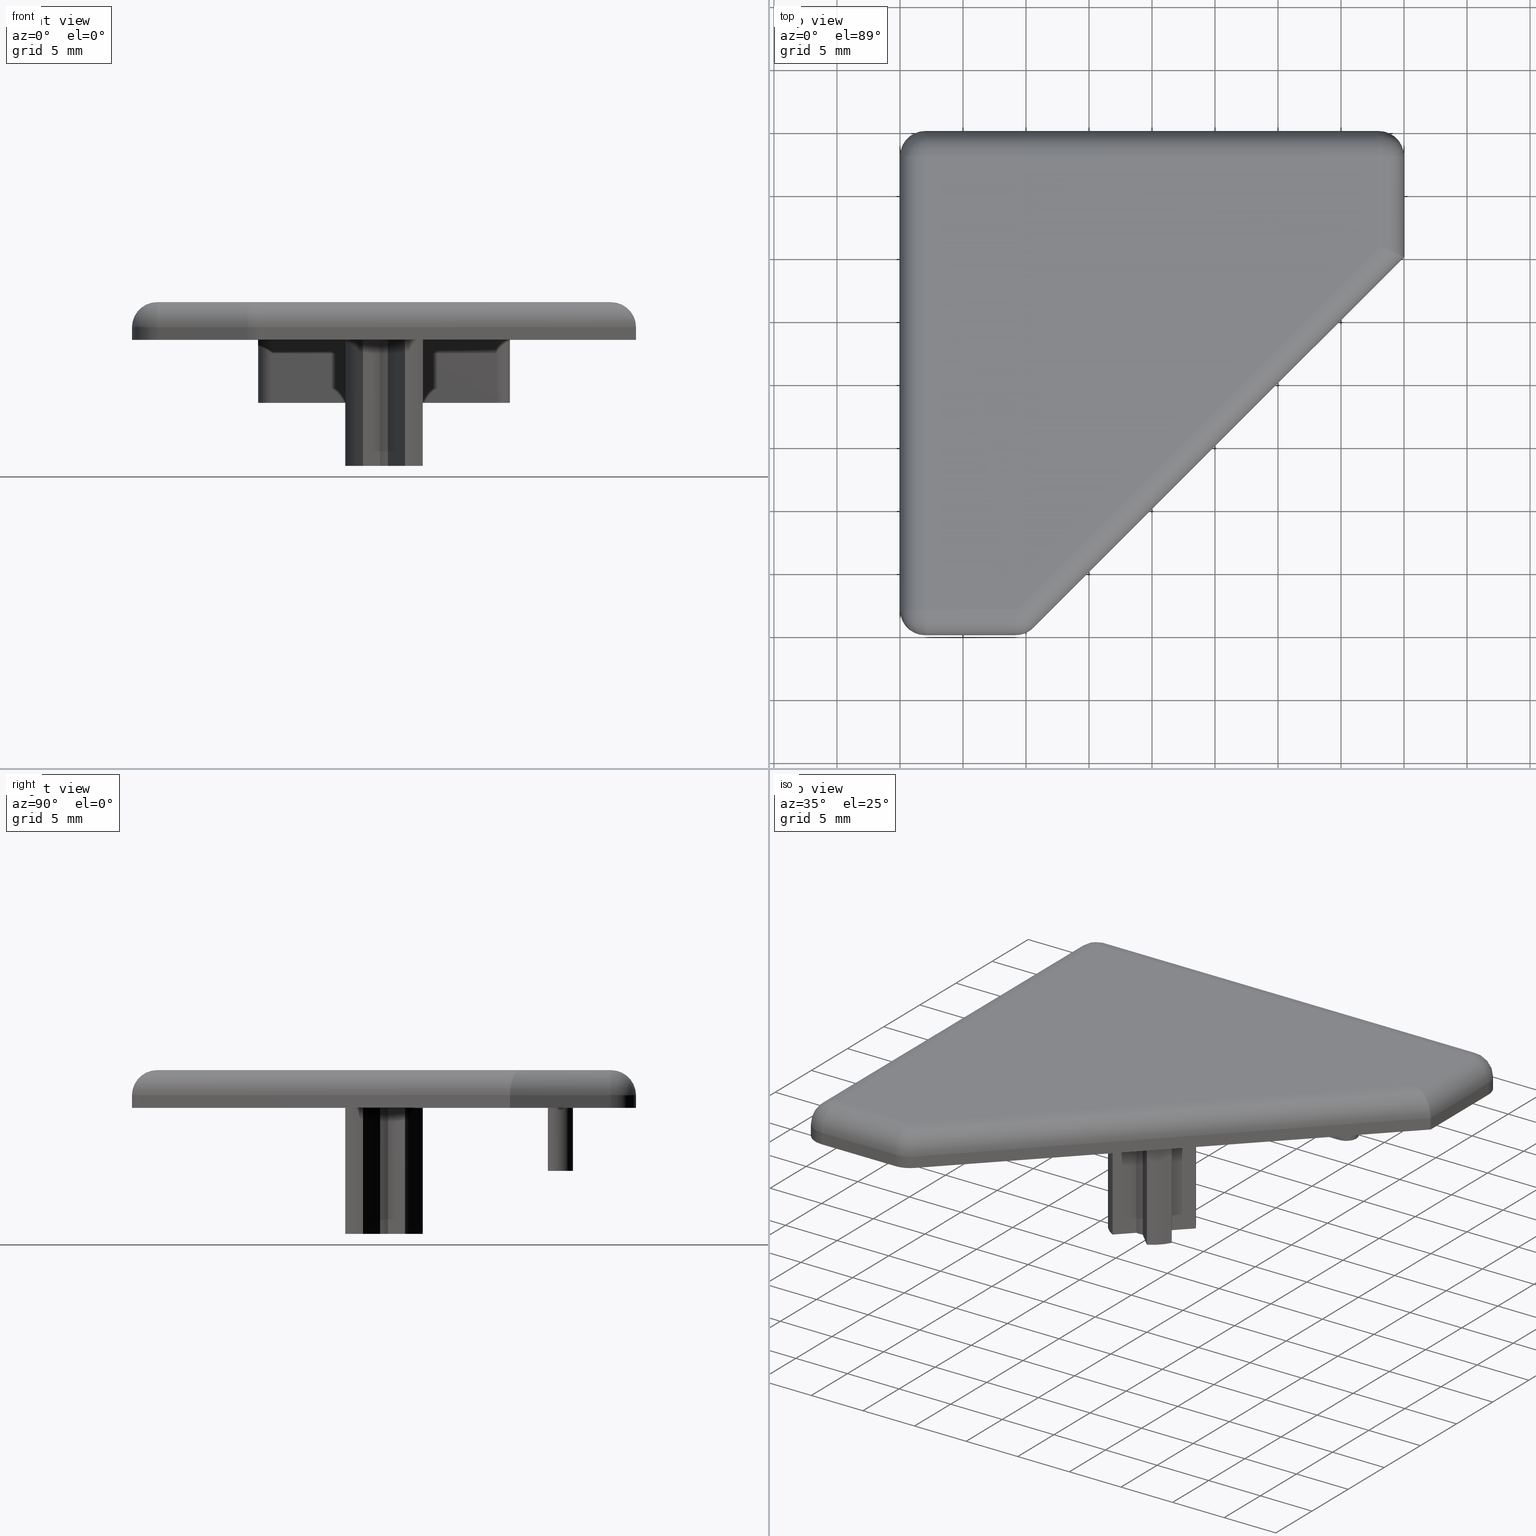
[diagram: canonical four-view strip — front | top / right | iso, engineering-drawing reading convention]
A machine part, canonical four-view strip (front | top / right | iso — engineering-drawing reading convention). The complete STEP part file that produces these views, byte-faithful:
ISO-10303-21;
HEADER;
/* Generated by software containing ST-Developer
 * from STEP Tools, Inc. (www.steptools.com) 
 */

FILE_DESCRIPTION(
/* description */ ('TAPPO 40x40 45\X\B0 NERO'),
/* implementation_level */ '2;1');

FILE_NAME(
/* name */ 'C:\\Users\\SJouini\\Desktop\\PER LAURA\\PAGINA 3\\18.004.0
0.stp',
/* time_stamp */ '2015-02-11T16:01:33+01:00',
/* author */ ('SJouini'),
/* organization */ (''),
/* preprocessor_version */ 'ST-DEVELOPER v15.2',
/* originating_system */ 'Autodesk Inventor 2014',
/* authorisation */ '');

FILE_SCHEMA (('AUTOMOTIVE_DESIGN { 1 0 10303 214 3 1 1 }'));
ENDSEC;

DATA;
#10=SHAPE_REPRESENTATION_RELATIONSHIP('SRR','None',#1239,#11);
#11=ADVANCED_BREP_SHAPE_REPRESENTATION($,(#717),#1230);
#12=STYLED_ITEM($,(#1247),#717);
#13=FACE_BOUND($,#118,.T.);
#14=FACE_BOUND($,#119,.T.);
#15=FACE_BOUND($,#120,.T.);
#16=ELLIPSE($,#788,2.16478440058479,2.);
#17=SPHERICAL_SURFACE($,#761,2.);
#18=SPHERICAL_SURFACE($,#767,2.);
#19=SPHERICAL_SURFACE($,#773,2.);
#20=SPHERICAL_SURFACE($,#780,2.);
#21=PLANE($,#722);
#22=PLANE($,#726);
#23=PLANE($,#730);
#24=PLANE($,#734);
#25=PLANE($,#738);
#26=PLANE($,#742);
#27=PLANE($,#746);
#28=PLANE($,#750);
#29=PLANE($,#751);
#30=PLANE($,#752);
#31=PLANE($,#759);
#32=PLANE($,#760);
#33=PLANE($,#791);
#34=PLANE($,#792);
#35=PLANE($,#793);
#36=PLANE($,#794);
#37=PLANE($,#795);
#38=PLANE($,#796);
#39=PLANE($,#797);
#40=FACE_OUTER_BOUND($,#81,.T.);
#41=FACE_OUTER_BOUND($,#82,.T.);
#42=FACE_OUTER_BOUND($,#83,.T.);
#43=FACE_OUTER_BOUND($,#84,.T.);
#44=FACE_OUTER_BOUND($,#85,.T.);
#45=FACE_OUTER_BOUND($,#86,.T.);
#46=FACE_OUTER_BOUND($,#87,.T.);
#47=FACE_OUTER_BOUND($,#88,.T.);
#48=FACE_OUTER_BOUND($,#89,.T.);
#49=FACE_OUTER_BOUND($,#90,.T.);
#50=FACE_OUTER_BOUND($,#91,.T.);
#51=FACE_OUTER_BOUND($,#92,.T.);
#52=FACE_OUTER_BOUND($,#93,.T.);
#53=FACE_OUTER_BOUND($,#94,.T.);
#54=FACE_OUTER_BOUND($,#95,.T.);
#55=FACE_OUTER_BOUND($,#96,.T.);
#56=FACE_OUTER_BOUND($,#97,.T.);
#57=FACE_OUTER_BOUND($,#98,.T.);
#58=FACE_OUTER_BOUND($,#99,.T.);
#59=FACE_OUTER_BOUND($,#100,.T.);
#60=FACE_OUTER_BOUND($,#101,.T.);
#61=FACE_OUTER_BOUND($,#102,.T.);
#62=FACE_OUTER_BOUND($,#103,.T.);
#63=FACE_OUTER_BOUND($,#104,.T.);
#64=FACE_OUTER_BOUND($,#105,.T.);
#65=FACE_OUTER_BOUND($,#106,.T.);
#66=FACE_OUTER_BOUND($,#107,.T.);
#67=FACE_OUTER_BOUND($,#108,.T.);
#68=FACE_OUTER_BOUND($,#109,.T.);
#69=FACE_OUTER_BOUND($,#110,.T.);
#70=FACE_OUTER_BOUND($,#111,.T.);
#71=FACE_OUTER_BOUND($,#112,.T.);
#72=FACE_OUTER_BOUND($,#113,.T.);
#73=FACE_OUTER_BOUND($,#114,.T.);
#74=FACE_OUTER_BOUND($,#115,.T.);
#75=FACE_OUTER_BOUND($,#116,.T.);
#76=FACE_OUTER_BOUND($,#117,.T.);
#77=FACE_OUTER_BOUND($,#121,.T.);
#78=FACE_OUTER_BOUND($,#122,.T.);
#79=FACE_OUTER_BOUND($,#123,.T.);
#80=FACE_OUTER_BOUND($,#124,.T.);
#81=EDGE_LOOP($,(#453,#454,#455,#456));
#82=EDGE_LOOP($,(#457,#458,#459,#460));
#83=EDGE_LOOP($,(#461,#462,#463,#464));
#84=EDGE_LOOP($,(#465,#466,#467,#468));
#85=EDGE_LOOP($,(#469,#470,#471,#472));
#86=EDGE_LOOP($,(#473,#474,#475,#476));
#87=EDGE_LOOP($,(#477,#478,#479,#480));
#88=EDGE_LOOP($,(#481,#482,#483,#484));
#89=EDGE_LOOP($,(#485,#486,#487,#488));
#90=EDGE_LOOP($,(#489,#490,#491,#492));
#91=EDGE_LOOP($,(#493,#494,#495,#496));
#92=EDGE_LOOP($,(#497,#498,#499,#500));
#93=EDGE_LOOP($,(#501,#502,#503,#504));
#94=EDGE_LOOP($,(#505,#506,#507,#508));
#95=EDGE_LOOP($,(#509,#510,#511,#512));
#96=EDGE_LOOP($,(#513,#514,#515,#516));
#97=EDGE_LOOP($,(#517,#518,#519,#520,#521,#522,#523,#524,#525,#526,#527,
#528,#529,#530,#531,#532));
#98=EDGE_LOOP($,(#533,#534,#535,#536));
#99=EDGE_LOOP($,(#537,#538,#539,#540));
#100=EDGE_LOOP($,(#541,#542,#543,#544));
#101=EDGE_LOOP($,(#545,#546,#547,#548));
#102=EDGE_LOOP($,(#549,#550,#551,#552));
#103=EDGE_LOOP($,(#553,#554,#555));
#104=EDGE_LOOP($,(#556,#557,#558,#559));
#105=EDGE_LOOP($,(#560,#561,#562));
#106=EDGE_LOOP($,(#563,#564,#565,#566));
#107=EDGE_LOOP($,(#567,#568,#569));
#108=EDGE_LOOP($,(#570,#571,#572,#573));
#109=EDGE_LOOP($,(#574,#575,#576,#577));
#110=EDGE_LOOP($,(#578,#579,#580));
#111=EDGE_LOOP($,(#581,#582,#583,#584));
#112=EDGE_LOOP($,(#585,#586,#587,#588));
#113=EDGE_LOOP($,(#589,#590,#591,#592));
#114=EDGE_LOOP($,(#593,#594,#595,#596));
#115=EDGE_LOOP($,(#597,#598,#599,#600));
#116=EDGE_LOOP($,(#601,#602,#603,#604));
#117=EDGE_LOOP($,(#605,#606,#607,#608));
#118=EDGE_LOOP($,(#609,#610,#611,#612,#613,#614,#615,#616,#617,#618,#619,
#620,#621,#622,#623,#624));
#119=EDGE_LOOP($,(#625,#626,#627,#628));
#120=EDGE_LOOP($,(#629,#630,#631,#632,#633,#634,#635,#636,#637));
#121=EDGE_LOOP($,(#638,#639,#640,#641,#642));
#122=EDGE_LOOP($,(#643,#644,#645,#646));
#123=EDGE_LOOP($,(#647,#648,#649,#650));
#124=EDGE_LOOP($,(#651,#652,#653,#654));
#125=LINE($,#1028,#189);
#126=LINE($,#1031,#190);
#127=LINE($,#1034,#191);
#128=LINE($,#1036,#192);
#129=LINE($,#1037,#193);
#130=LINE($,#1043,#194);
#131=LINE($,#1046,#195);
#132=LINE($,#1048,#196);
#133=LINE($,#1049,#197);
#134=LINE($,#1055,#198);
#135=LINE($,#1058,#199);
#136=LINE($,#1060,#200);
#137=LINE($,#1061,#201);
#138=LINE($,#1067,#202);
#139=LINE($,#1070,#203);
#140=LINE($,#1072,#204);
#141=LINE($,#1073,#205);
#142=LINE($,#1079,#206);
#143=LINE($,#1082,#207);
#144=LINE($,#1084,#208);
#145=LINE($,#1085,#209);
#146=LINE($,#1091,#210);
#147=LINE($,#1094,#211);
#148=LINE($,#1096,#212);
#149=LINE($,#1097,#213);
#150=LINE($,#1103,#214);
#151=LINE($,#1106,#215);
#152=LINE($,#1108,#216);
#153=LINE($,#1109,#217);
#154=LINE($,#1115,#218);
#155=LINE($,#1117,#219);
#156=LINE($,#1118,#220);
#157=LINE($,#1125,#221);
#158=LINE($,#1128,#222);
#159=LINE($,#1131,#223);
#160=LINE($,#1134,#224);
#161=LINE($,#1137,#225);
#162=LINE($,#1140,#226);
#163=LINE($,#1142,#227);
#164=LINE($,#1144,#228);
#165=LINE($,#1156,#229);
#166=LINE($,#1157,#230);
#167=LINE($,#1169,#231);
#168=LINE($,#1170,#232);
#169=LINE($,#1182,#233);
#170=LINE($,#1183,#234);
#171=LINE($,#1185,#235);
#172=LINE($,#1186,#236);
#173=LINE($,#1198,#237);
#174=LINE($,#1199,#238);
#175=LINE($,#1201,#239);
#176=LINE($,#1202,#240);
#177=LINE($,#1205,#241);
#178=LINE($,#1207,#242);
#179=LINE($,#1210,#243);
#180=LINE($,#1211,#244);
#181=LINE($,#1213,#245);
#182=LINE($,#1214,#246);
#183=LINE($,#1216,#247);
#184=LINE($,#1218,#248);
#185=LINE($,#1221,#249);
#186=LINE($,#1222,#250);
#187=LINE($,#1223,#251);
#188=LINE($,#1226,#252);
#189=VECTOR($,#804,10.);
#190=VECTOR($,#807,10.);
#191=VECTOR($,#810,1.91796130461518);
#192=VECTOR($,#811,1.91796130461518);
#193=VECTOR($,#812,10.);
#194=VECTOR($,#819,10.);
#195=VECTOR($,#822,1.91796130461518);
#196=VECTOR($,#823,1.91796130461518);
#197=VECTOR($,#824,10.);
#198=VECTOR($,#831,10.);
#199=VECTOR($,#834,1.91796130461518);
#200=VECTOR($,#835,1.91796130461518);
#201=VECTOR($,#836,10.);
#202=VECTOR($,#843,10.);
#203=VECTOR($,#846,1.91796130461518);
#204=VECTOR($,#847,1.91796130461518);
#205=VECTOR($,#848,10.);
#206=VECTOR($,#855,10.);
#207=VECTOR($,#858,1.91796130461518);
#208=VECTOR($,#859,1.91796130461518);
#209=VECTOR($,#860,10.);
#210=VECTOR($,#867,10.);
#211=VECTOR($,#870,1.91796130461518);
#212=VECTOR($,#871,1.91796130461518);
#213=VECTOR($,#872,10.);
#214=VECTOR($,#879,10.);
#215=VECTOR($,#882,1.91796130461518);
#216=VECTOR($,#883,1.91796130461518);
#217=VECTOR($,#884,10.);
#218=VECTOR($,#891,10.);
#219=VECTOR($,#894,1.91796130461518);
#220=VECTOR($,#895,1.91796130461518);
#221=VECTOR($,#902,18.);
#222=VECTOR($,#905,18.);
#223=VECTOR($,#908,5.);
#224=VECTOR($,#911,5.);
#225=VECTOR($,#914,5.);
#226=VECTOR($,#917,5.);
#227=VECTOR($,#920,18.);
#228=VECTOR($,#923,18.);
#229=VECTOR($,#936,1.);
#230=VECTOR($,#937,1.);
#231=VECTOR($,#950,1.);
#232=VECTOR($,#951,1.);
#233=VECTOR($,#964,1.);
#234=VECTOR($,#965,1.);
#235=VECTOR($,#968,36.);
#236=VECTOR($,#969,36.);
#237=VECTOR($,#982,1.);
#238=VECTOR($,#983,1.);
#239=VECTOR($,#986,36.);
#240=VECTOR($,#987,36.);
#241=VECTOR($,#990,8.);
#242=VECTOR($,#991,7.1715728752538);
#243=VECTOR($,#996,40.7695526217005);
#244=VECTOR($,#997,41.5979797464467);
#245=VECTOR($,#1000,7.17157287525381);
#246=VECTOR($,#1001,7.17157287525381);
#247=VECTOR($,#1004,36.);
#248=VECTOR($,#1007,36.);
#249=VECTOR($,#1010,8.);
#250=VECTOR($,#1011,41.5979797464467);
#251=VECTOR($,#1012,7.17157287525381);
#252=VECTOR($,#1017,1.);
#253=CIRCLE($,#720,3.5);
#254=CIRCLE($,#721,3.5);
#255=CIRCLE($,#724,1.75);
#256=CIRCLE($,#725,1.75);
#257=CIRCLE($,#728,3.5);
#258=CIRCLE($,#729,3.5);
#259=CIRCLE($,#732,1.75);
#260=CIRCLE($,#733,1.75);
#261=CIRCLE($,#736,3.5);
#262=CIRCLE($,#737,3.5);
#263=CIRCLE($,#740,1.75);
#264=CIRCLE($,#741,1.75);
#265=CIRCLE($,#744,3.5);
#266=CIRCLE($,#745,3.5);
#267=CIRCLE($,#748,1.75);
#268=CIRCLE($,#749,1.75);
#269=CIRCLE($,#753,1.);
#270=CIRCLE($,#754,1.);
#271=CIRCLE($,#756,1.);
#272=CIRCLE($,#758,1.);
#273=CIRCLE($,#762,2.);
#274=CIRCLE($,#763,2.);
#275=CIRCLE($,#764,2.);
#276=CIRCLE($,#766,2.);
#277=CIRCLE($,#768,2.);
#278=CIRCLE($,#769,2.);
#279=CIRCLE($,#770,2.);
#280=CIRCLE($,#772,2.);
#281=CIRCLE($,#774,2.);
#282=CIRCLE($,#775,2.);
#283=CIRCLE($,#776,2.);
#284=CIRCLE($,#778,2.);
#285=CIRCLE($,#781,2.);
#286=CIRCLE($,#782,2.);
#287=CIRCLE($,#783,2.);
#288=CIRCLE($,#785,2.);
#289=VERTEX_POINT($,#1024);
#290=VERTEX_POINT($,#1025);
#291=VERTEX_POINT($,#1027);
#292=VERTEX_POINT($,#1029);
#293=VERTEX_POINT($,#1033);
#294=VERTEX_POINT($,#1035);
#295=VERTEX_POINT($,#1039);
#296=VERTEX_POINT($,#1041);
#297=VERTEX_POINT($,#1045);
#298=VERTEX_POINT($,#1047);
#299=VERTEX_POINT($,#1051);
#300=VERTEX_POINT($,#1053);
#301=VERTEX_POINT($,#1057);
#302=VERTEX_POINT($,#1059);
#303=VERTEX_POINT($,#1063);
#304=VERTEX_POINT($,#1065);
#305=VERTEX_POINT($,#1069);
#306=VERTEX_POINT($,#1071);
#307=VERTEX_POINT($,#1075);
#308=VERTEX_POINT($,#1077);
#309=VERTEX_POINT($,#1081);
#310=VERTEX_POINT($,#1083);
#311=VERTEX_POINT($,#1087);
#312=VERTEX_POINT($,#1089);
#313=VERTEX_POINT($,#1093);
#314=VERTEX_POINT($,#1095);
#315=VERTEX_POINT($,#1099);
#316=VERTEX_POINT($,#1101);
#317=VERTEX_POINT($,#1105);
#318=VERTEX_POINT($,#1107);
#319=VERTEX_POINT($,#1111);
#320=VERTEX_POINT($,#1113);
#321=VERTEX_POINT($,#1121);
#322=VERTEX_POINT($,#1122);
#323=VERTEX_POINT($,#1124);
#324=VERTEX_POINT($,#1126);
#325=VERTEX_POINT($,#1130);
#326=VERTEX_POINT($,#1132);
#327=VERTEX_POINT($,#1136);
#328=VERTEX_POINT($,#1138);
#329=VERTEX_POINT($,#1146);
#330=VERTEX_POINT($,#1147);
#331=VERTEX_POINT($,#1149);
#332=VERTEX_POINT($,#1153);
#333=VERTEX_POINT($,#1154);
#334=VERTEX_POINT($,#1159);
#335=VERTEX_POINT($,#1160);
#336=VERTEX_POINT($,#1162);
#337=VERTEX_POINT($,#1166);
#338=VERTEX_POINT($,#1167);
#339=VERTEX_POINT($,#1172);
#340=VERTEX_POINT($,#1173);
#341=VERTEX_POINT($,#1175);
#342=VERTEX_POINT($,#1179);
#343=VERTEX_POINT($,#1180);
#344=VERTEX_POINT($,#1188);
#345=VERTEX_POINT($,#1189);
#346=VERTEX_POINT($,#1191);
#347=VERTEX_POINT($,#1195);
#348=VERTEX_POINT($,#1196);
#349=VERTEX_POINT($,#1204);
#350=VERTEX_POINT($,#1206);
#351=VERTEX_POINT($,#1220);
#352=EDGE_CURVE($,#289,#290,#253,.T.);
#353=EDGE_CURVE($,#289,#291,#125,.T.);
#354=EDGE_CURVE($,#292,#291,#254,.T.);
#355=EDGE_CURVE($,#290,#292,#126,.T.);
#356=EDGE_CURVE($,#290,#293,#127,.T.);
#357=EDGE_CURVE($,#294,#292,#128,.T.);
#358=EDGE_CURVE($,#293,#294,#129,.T.);
#359=EDGE_CURVE($,#293,#295,#255,.T.);
#360=EDGE_CURVE($,#296,#294,#256,.T.);
#361=EDGE_CURVE($,#295,#296,#130,.T.);
#362=EDGE_CURVE($,#295,#297,#131,.T.);
#363=EDGE_CURVE($,#298,#296,#132,.T.);
#364=EDGE_CURVE($,#297,#298,#133,.T.);
#365=EDGE_CURVE($,#297,#299,#257,.T.);
#366=EDGE_CURVE($,#300,#298,#258,.T.);
#367=EDGE_CURVE($,#299,#300,#134,.T.);
#368=EDGE_CURVE($,#299,#301,#135,.T.);
#369=EDGE_CURVE($,#302,#300,#136,.T.);
#370=EDGE_CURVE($,#301,#302,#137,.T.);
#371=EDGE_CURVE($,#301,#303,#259,.T.);
#372=EDGE_CURVE($,#304,#302,#260,.T.);
#373=EDGE_CURVE($,#303,#304,#138,.T.);
#374=EDGE_CURVE($,#303,#305,#139,.T.);
#375=EDGE_CURVE($,#306,#304,#140,.T.);
#376=EDGE_CURVE($,#305,#306,#141,.T.);
#377=EDGE_CURVE($,#305,#307,#261,.T.);
#378=EDGE_CURVE($,#308,#306,#262,.T.);
#379=EDGE_CURVE($,#307,#308,#142,.T.);
#380=EDGE_CURVE($,#307,#309,#143,.T.);
#381=EDGE_CURVE($,#310,#308,#144,.T.);
#382=EDGE_CURVE($,#309,#310,#145,.T.);
#383=EDGE_CURVE($,#309,#311,#263,.T.);
#384=EDGE_CURVE($,#312,#310,#264,.T.);
#385=EDGE_CURVE($,#311,#312,#146,.T.);
#386=EDGE_CURVE($,#311,#313,#147,.T.);
#387=EDGE_CURVE($,#314,#312,#148,.T.);
#388=EDGE_CURVE($,#313,#314,#149,.T.);
#389=EDGE_CURVE($,#313,#315,#265,.T.);
#390=EDGE_CURVE($,#316,#314,#266,.T.);
#391=EDGE_CURVE($,#315,#316,#150,.T.);
#392=EDGE_CURVE($,#315,#317,#151,.T.);
#393=EDGE_CURVE($,#318,#316,#152,.T.);
#394=EDGE_CURVE($,#317,#318,#153,.T.);
#395=EDGE_CURVE($,#317,#319,#267,.T.);
#396=EDGE_CURVE($,#320,#318,#268,.T.);
#397=EDGE_CURVE($,#319,#320,#154,.T.);
#398=EDGE_CURVE($,#319,#289,#155,.T.);
#399=EDGE_CURVE($,#291,#320,#156,.T.);
#400=EDGE_CURVE($,#321,#322,#269,.T.);
#401=EDGE_CURVE($,#321,#323,#157,.T.);
#402=EDGE_CURVE($,#324,#323,#270,.T.);
#403=EDGE_CURVE($,#324,#322,#158,.T.);
#404=EDGE_CURVE($,#322,#325,#159,.T.);
#405=EDGE_CURVE($,#325,#326,#271,.F.);
#406=EDGE_CURVE($,#326,#321,#160,.T.);
#407=EDGE_CURVE($,#323,#327,#161,.T.);
#408=EDGE_CURVE($,#327,#328,#272,.F.);
#409=EDGE_CURVE($,#328,#324,#162,.T.);
#410=EDGE_CURVE($,#327,#326,#163,.T.);
#411=EDGE_CURVE($,#325,#328,#164,.T.);
#412=EDGE_CURVE($,#329,#330,#273,.F.);
#413=EDGE_CURVE($,#331,#329,#274,.F.);
#414=EDGE_CURVE($,#330,#331,#275,.F.);
#415=EDGE_CURVE($,#332,#333,#276,.T.);
#416=EDGE_CURVE($,#333,#331,#165,.T.);
#417=EDGE_CURVE($,#329,#332,#166,.T.);
#418=EDGE_CURVE($,#334,#335,#277,.F.);
#419=EDGE_CURVE($,#336,#334,#278,.F.);
#420=EDGE_CURVE($,#335,#336,#279,.F.);
#421=EDGE_CURVE($,#337,#338,#280,.T.);
#422=EDGE_CURVE($,#338,#336,#167,.T.);
#423=EDGE_CURVE($,#334,#337,#168,.T.);
#424=EDGE_CURVE($,#339,#340,#281,.F.);
#425=EDGE_CURVE($,#341,#339,#282,.F.);
#426=EDGE_CURVE($,#340,#341,#283,.F.);
#427=EDGE_CURVE($,#342,#343,#284,.T.);
#428=EDGE_CURVE($,#343,#341,#169,.T.);
#429=EDGE_CURVE($,#339,#342,#170,.T.);
#430=EDGE_CURVE($,#330,#340,#171,.T.);
#431=EDGE_CURVE($,#341,#329,#172,.T.);
#432=EDGE_CURVE($,#344,#345,#285,.F.);
#433=EDGE_CURVE($,#346,#344,#286,.F.);
#434=EDGE_CURVE($,#345,#346,#287,.F.);
#435=EDGE_CURVE($,#347,#348,#288,.T.);
#436=EDGE_CURVE($,#348,#346,#173,.T.);
#437=EDGE_CURVE($,#344,#347,#174,.T.);
#438=EDGE_CURVE($,#340,#345,#175,.T.);
#439=EDGE_CURVE($,#346,#339,#176,.T.);
#440=EDGE_CURVE($,#349,#344,#177,.T.);
#441=EDGE_CURVE($,#345,#350,#178,.T.);
#442=EDGE_CURVE($,#350,#349,#16,.T.);
#443=EDGE_CURVE($,#350,#335,#179,.T.);
#444=EDGE_CURVE($,#336,#349,#180,.T.);
#445=EDGE_CURVE($,#335,#330,#181,.T.);
#446=EDGE_CURVE($,#331,#334,#182,.T.);
#447=EDGE_CURVE($,#332,#343,#183,.T.);
#448=EDGE_CURVE($,#342,#348,#184,.T.);
#449=EDGE_CURVE($,#347,#351,#185,.T.);
#450=EDGE_CURVE($,#351,#338,#186,.T.);
#451=EDGE_CURVE($,#337,#333,#187,.T.);
#452=EDGE_CURVE($,#351,#349,#188,.T.);
#453=ORIENTED_EDGE($,*,*,#352,.F.);
#454=ORIENTED_EDGE($,*,*,#353,.T.);
#455=ORIENTED_EDGE($,*,*,#354,.F.);
#456=ORIENTED_EDGE($,*,*,#355,.F.);
#457=ORIENTED_EDGE($,*,*,#356,.F.);
#458=ORIENTED_EDGE($,*,*,#355,.T.);
#459=ORIENTED_EDGE($,*,*,#357,.F.);
#460=ORIENTED_EDGE($,*,*,#358,.F.);
#461=ORIENTED_EDGE($,*,*,#359,.F.);
#462=ORIENTED_EDGE($,*,*,#358,.T.);
#463=ORIENTED_EDGE($,*,*,#360,.F.);
#464=ORIENTED_EDGE($,*,*,#361,.F.);
#465=ORIENTED_EDGE($,*,*,#362,.F.);
#466=ORIENTED_EDGE($,*,*,#361,.T.);
#467=ORIENTED_EDGE($,*,*,#363,.F.);
#468=ORIENTED_EDGE($,*,*,#364,.F.);
#469=ORIENTED_EDGE($,*,*,#365,.F.);
#470=ORIENTED_EDGE($,*,*,#364,.T.);
#471=ORIENTED_EDGE($,*,*,#366,.F.);
#472=ORIENTED_EDGE($,*,*,#367,.F.);
#473=ORIENTED_EDGE($,*,*,#368,.F.);
#474=ORIENTED_EDGE($,*,*,#367,.T.);
#475=ORIENTED_EDGE($,*,*,#369,.F.);
#476=ORIENTED_EDGE($,*,*,#370,.F.);
#477=ORIENTED_EDGE($,*,*,#371,.F.);
#478=ORIENTED_EDGE($,*,*,#370,.T.);
#479=ORIENTED_EDGE($,*,*,#372,.F.);
#480=ORIENTED_EDGE($,*,*,#373,.F.);
#481=ORIENTED_EDGE($,*,*,#374,.F.);
#482=ORIENTED_EDGE($,*,*,#373,.T.);
#483=ORIENTED_EDGE($,*,*,#375,.F.);
#484=ORIENTED_EDGE($,*,*,#376,.F.);
#485=ORIENTED_EDGE($,*,*,#377,.F.);
#486=ORIENTED_EDGE($,*,*,#376,.T.);
#487=ORIENTED_EDGE($,*,*,#378,.F.);
#488=ORIENTED_EDGE($,*,*,#379,.F.);
#489=ORIENTED_EDGE($,*,*,#380,.F.);
#490=ORIENTED_EDGE($,*,*,#379,.T.);
#491=ORIENTED_EDGE($,*,*,#381,.F.);
#492=ORIENTED_EDGE($,*,*,#382,.F.);
#493=ORIENTED_EDGE($,*,*,#383,.F.);
#494=ORIENTED_EDGE($,*,*,#382,.T.);
#495=ORIENTED_EDGE($,*,*,#384,.F.);
#496=ORIENTED_EDGE($,*,*,#385,.F.);
#497=ORIENTED_EDGE($,*,*,#386,.F.);
#498=ORIENTED_EDGE($,*,*,#385,.T.);
#499=ORIENTED_EDGE($,*,*,#387,.F.);
#500=ORIENTED_EDGE($,*,*,#388,.F.);
#501=ORIENTED_EDGE($,*,*,#389,.F.);
#502=ORIENTED_EDGE($,*,*,#388,.T.);
#503=ORIENTED_EDGE($,*,*,#390,.F.);
#504=ORIENTED_EDGE($,*,*,#391,.F.);
#505=ORIENTED_EDGE($,*,*,#392,.F.);
#506=ORIENTED_EDGE($,*,*,#391,.T.);
#507=ORIENTED_EDGE($,*,*,#393,.F.);
#508=ORIENTED_EDGE($,*,*,#394,.F.);
#509=ORIENTED_EDGE($,*,*,#395,.F.);
#510=ORIENTED_EDGE($,*,*,#394,.T.);
#511=ORIENTED_EDGE($,*,*,#396,.F.);
#512=ORIENTED_EDGE($,*,*,#397,.F.);
#513=ORIENTED_EDGE($,*,*,#398,.F.);
#514=ORIENTED_EDGE($,*,*,#397,.T.);
#515=ORIENTED_EDGE($,*,*,#399,.F.);
#516=ORIENTED_EDGE($,*,*,#353,.F.);
#517=ORIENTED_EDGE($,*,*,#399,.T.);
#518=ORIENTED_EDGE($,*,*,#396,.T.);
#519=ORIENTED_EDGE($,*,*,#393,.T.);
#520=ORIENTED_EDGE($,*,*,#390,.T.);
#521=ORIENTED_EDGE($,*,*,#387,.T.);
#522=ORIENTED_EDGE($,*,*,#384,.T.);
#523=ORIENTED_EDGE($,*,*,#381,.T.);
#524=ORIENTED_EDGE($,*,*,#378,.T.);
#525=ORIENTED_EDGE($,*,*,#375,.T.);
#526=ORIENTED_EDGE($,*,*,#372,.T.);
#527=ORIENTED_EDGE($,*,*,#369,.T.);
#528=ORIENTED_EDGE($,*,*,#366,.T.);
#529=ORIENTED_EDGE($,*,*,#363,.T.);
#530=ORIENTED_EDGE($,*,*,#360,.T.);
#531=ORIENTED_EDGE($,*,*,#357,.T.);
#532=ORIENTED_EDGE($,*,*,#354,.T.);
#533=ORIENTED_EDGE($,*,*,#400,.F.);
#534=ORIENTED_EDGE($,*,*,#401,.T.);
#535=ORIENTED_EDGE($,*,*,#402,.F.);
#536=ORIENTED_EDGE($,*,*,#403,.T.);
#537=ORIENTED_EDGE($,*,*,#400,.T.);
#538=ORIENTED_EDGE($,*,*,#404,.T.);
#539=ORIENTED_EDGE($,*,*,#405,.T.);
#540=ORIENTED_EDGE($,*,*,#406,.T.);
#541=ORIENTED_EDGE($,*,*,#402,.T.);
#542=ORIENTED_EDGE($,*,*,#407,.T.);
#543=ORIENTED_EDGE($,*,*,#408,.T.);
#544=ORIENTED_EDGE($,*,*,#409,.T.);
#545=ORIENTED_EDGE($,*,*,#406,.F.);
#546=ORIENTED_EDGE($,*,*,#410,.F.);
#547=ORIENTED_EDGE($,*,*,#407,.F.);
#548=ORIENTED_EDGE($,*,*,#401,.F.);
#549=ORIENTED_EDGE($,*,*,#404,.F.);
#550=ORIENTED_EDGE($,*,*,#403,.F.);
#551=ORIENTED_EDGE($,*,*,#409,.F.);
#552=ORIENTED_EDGE($,*,*,#411,.F.);
#553=ORIENTED_EDGE($,*,*,#412,.F.);
#554=ORIENTED_EDGE($,*,*,#413,.F.);
#555=ORIENTED_EDGE($,*,*,#414,.F.);
#556=ORIENTED_EDGE($,*,*,#415,.T.);
#557=ORIENTED_EDGE($,*,*,#416,.T.);
#558=ORIENTED_EDGE($,*,*,#413,.T.);
#559=ORIENTED_EDGE($,*,*,#417,.T.);
#560=ORIENTED_EDGE($,*,*,#418,.F.);
#561=ORIENTED_EDGE($,*,*,#419,.F.);
#562=ORIENTED_EDGE($,*,*,#420,.F.);
#563=ORIENTED_EDGE($,*,*,#421,.T.);
#564=ORIENTED_EDGE($,*,*,#422,.T.);
#565=ORIENTED_EDGE($,*,*,#419,.T.);
#566=ORIENTED_EDGE($,*,*,#423,.T.);
#567=ORIENTED_EDGE($,*,*,#424,.F.);
#568=ORIENTED_EDGE($,*,*,#425,.F.);
#569=ORIENTED_EDGE($,*,*,#426,.F.);
#570=ORIENTED_EDGE($,*,*,#427,.T.);
#571=ORIENTED_EDGE($,*,*,#428,.T.);
#572=ORIENTED_EDGE($,*,*,#425,.T.);
#573=ORIENTED_EDGE($,*,*,#429,.T.);
#574=ORIENTED_EDGE($,*,*,#412,.T.);
#575=ORIENTED_EDGE($,*,*,#430,.T.);
#576=ORIENTED_EDGE($,*,*,#426,.T.);
#577=ORIENTED_EDGE($,*,*,#431,.T.);
#578=ORIENTED_EDGE($,*,*,#432,.F.);
#579=ORIENTED_EDGE($,*,*,#433,.F.);
#580=ORIENTED_EDGE($,*,*,#434,.F.);
#581=ORIENTED_EDGE($,*,*,#435,.T.);
#582=ORIENTED_EDGE($,*,*,#436,.T.);
#583=ORIENTED_EDGE($,*,*,#433,.T.);
#584=ORIENTED_EDGE($,*,*,#437,.T.);
#585=ORIENTED_EDGE($,*,*,#424,.T.);
#586=ORIENTED_EDGE($,*,*,#438,.T.);
#587=ORIENTED_EDGE($,*,*,#434,.T.);
#588=ORIENTED_EDGE($,*,*,#439,.T.);
#589=ORIENTED_EDGE($,*,*,#440,.T.);
#590=ORIENTED_EDGE($,*,*,#432,.T.);
#591=ORIENTED_EDGE($,*,*,#441,.T.);
#592=ORIENTED_EDGE($,*,*,#442,.T.);
#593=ORIENTED_EDGE($,*,*,#443,.T.);
#594=ORIENTED_EDGE($,*,*,#420,.T.);
#595=ORIENTED_EDGE($,*,*,#444,.T.);
#596=ORIENTED_EDGE($,*,*,#442,.F.);
#597=ORIENTED_EDGE($,*,*,#418,.T.);
#598=ORIENTED_EDGE($,*,*,#445,.T.);
#599=ORIENTED_EDGE($,*,*,#414,.T.);
#600=ORIENTED_EDGE($,*,*,#446,.T.);
#601=ORIENTED_EDGE($,*,*,#417,.F.);
#602=ORIENTED_EDGE($,*,*,#431,.F.);
#603=ORIENTED_EDGE($,*,*,#428,.F.);
#604=ORIENTED_EDGE($,*,*,#447,.F.);
#605=ORIENTED_EDGE($,*,*,#429,.F.);
#606=ORIENTED_EDGE($,*,*,#439,.F.);
#607=ORIENTED_EDGE($,*,*,#436,.F.);
#608=ORIENTED_EDGE($,*,*,#448,.F.);
#609=ORIENTED_EDGE($,*,*,#352,.T.);
#610=ORIENTED_EDGE($,*,*,#356,.T.);
#611=ORIENTED_EDGE($,*,*,#359,.T.);
#612=ORIENTED_EDGE($,*,*,#362,.T.);
#613=ORIENTED_EDGE($,*,*,#365,.T.);
#614=ORIENTED_EDGE($,*,*,#368,.T.);
#615=ORIENTED_EDGE($,*,*,#371,.T.);
#616=ORIENTED_EDGE($,*,*,#374,.T.);
#617=ORIENTED_EDGE($,*,*,#377,.T.);
#618=ORIENTED_EDGE($,*,*,#380,.T.);
#619=ORIENTED_EDGE($,*,*,#383,.T.);
#620=ORIENTED_EDGE($,*,*,#386,.T.);
#621=ORIENTED_EDGE($,*,*,#389,.T.);
#622=ORIENTED_EDGE($,*,*,#392,.T.);
#623=ORIENTED_EDGE($,*,*,#395,.T.);
#624=ORIENTED_EDGE($,*,*,#398,.T.);
#625=ORIENTED_EDGE($,*,*,#408,.F.);
#626=ORIENTED_EDGE($,*,*,#410,.T.);
#627=ORIENTED_EDGE($,*,*,#405,.F.);
#628=ORIENTED_EDGE($,*,*,#411,.T.);
#629=ORIENTED_EDGE($,*,*,#415,.F.);
#630=ORIENTED_EDGE($,*,*,#447,.T.);
#631=ORIENTED_EDGE($,*,*,#427,.F.);
#632=ORIENTED_EDGE($,*,*,#448,.T.);
#633=ORIENTED_EDGE($,*,*,#435,.F.);
#634=ORIENTED_EDGE($,*,*,#449,.T.);
#635=ORIENTED_EDGE($,*,*,#450,.T.);
#636=ORIENTED_EDGE($,*,*,#421,.F.);
#637=ORIENTED_EDGE($,*,*,#451,.T.);
#638=ORIENTED_EDGE($,*,*,#430,.F.);
#639=ORIENTED_EDGE($,*,*,#445,.F.);
#640=ORIENTED_EDGE($,*,*,#443,.F.);
#641=ORIENTED_EDGE($,*,*,#441,.F.);
#642=ORIENTED_EDGE($,*,*,#438,.F.);
#643=ORIENTED_EDGE($,*,*,#440,.F.);
#644=ORIENTED_EDGE($,*,*,#452,.F.);
#645=ORIENTED_EDGE($,*,*,#449,.F.);
#646=ORIENTED_EDGE($,*,*,#437,.F.);
#647=ORIENTED_EDGE($,*,*,#422,.F.);
#648=ORIENTED_EDGE($,*,*,#450,.F.);
#649=ORIENTED_EDGE($,*,*,#452,.T.);
#650=ORIENTED_EDGE($,*,*,#444,.F.);
#651=ORIENTED_EDGE($,*,*,#416,.F.);
#652=ORIENTED_EDGE($,*,*,#451,.F.);
#653=ORIENTED_EDGE($,*,*,#423,.F.);
#654=ORIENTED_EDGE($,*,*,#446,.F.);
#655=CYLINDRICAL_SURFACE($,#719,3.5);
#656=CYLINDRICAL_SURFACE($,#723,1.75);
#657=CYLINDRICAL_SURFACE($,#727,3.5);
#658=CYLINDRICAL_SURFACE($,#731,1.75);
#659=CYLINDRICAL_SURFACE($,#735,3.5);
#660=CYLINDRICAL_SURFACE($,#739,1.75);
#661=CYLINDRICAL_SURFACE($,#743,3.5);
#662=CYLINDRICAL_SURFACE($,#747,1.75);
#663=CYLINDRICAL_SURFACE($,#755,1.);
#664=CYLINDRICAL_SURFACE($,#757,1.);
#665=CYLINDRICAL_SURFACE($,#765,2.);
#666=CYLINDRICAL_SURFACE($,#771,2.);
#667=CYLINDRICAL_SURFACE($,#777,2.);
#668=CYLINDRICAL_SURFACE($,#779,2.);
#669=CYLINDRICAL_SURFACE($,#784,2.);
#670=CYLINDRICAL_SURFACE($,#786,2.);
#671=CYLINDRICAL_SURFACE($,#787,2.);
#672=CYLINDRICAL_SURFACE($,#789,2.);
#673=CYLINDRICAL_SURFACE($,#790,2.);
#674=ADVANCED_FACE($,(#40),#655,.T.);
#675=ADVANCED_FACE($,(#41),#21,.T.);
#676=ADVANCED_FACE($,(#42),#656,.T.);
#677=ADVANCED_FACE($,(#43),#22,.T.);
#678=ADVANCED_FACE($,(#44),#657,.T.);
#679=ADVANCED_FACE($,(#45),#23,.T.);
#680=ADVANCED_FACE($,(#46),#658,.T.);
#681=ADVANCED_FACE($,(#47),#24,.T.);
#682=ADVANCED_FACE($,(#48),#659,.T.);
#683=ADVANCED_FACE($,(#49),#25,.T.);
#684=ADVANCED_FACE($,(#50),#660,.T.);
#685=ADVANCED_FACE($,(#51),#26,.T.);
#686=ADVANCED_FACE($,(#52),#661,.T.);
#687=ADVANCED_FACE($,(#53),#27,.T.);
#688=ADVANCED_FACE($,(#54),#662,.T.);
#689=ADVANCED_FACE($,(#55),#28,.T.);
#690=ADVANCED_FACE($,(#56),#29,.F.);
#691=ADVANCED_FACE($,(#57),#30,.T.);
#692=ADVANCED_FACE($,(#58),#663,.T.);
#693=ADVANCED_FACE($,(#59),#664,.T.);
#694=ADVANCED_FACE($,(#60),#31,.T.);
#695=ADVANCED_FACE($,(#61),#32,.T.);
#696=ADVANCED_FACE($,(#62),#17,.T.);
#697=ADVANCED_FACE($,(#63),#665,.T.);
#698=ADVANCED_FACE($,(#64),#18,.T.);
#699=ADVANCED_FACE($,(#65),#666,.T.);
#700=ADVANCED_FACE($,(#66),#19,.T.);
#701=ADVANCED_FACE($,(#67),#667,.T.);
#702=ADVANCED_FACE($,(#68),#668,.T.);
#703=ADVANCED_FACE($,(#69),#20,.T.);
#704=ADVANCED_FACE($,(#70),#669,.T.);
#705=ADVANCED_FACE($,(#71),#670,.T.);
#706=ADVANCED_FACE($,(#72),#671,.T.);
#707=ADVANCED_FACE($,(#73),#672,.T.);
#708=ADVANCED_FACE($,(#74),#673,.T.);
#709=ADVANCED_FACE($,(#75),#33,.T.);
#710=ADVANCED_FACE($,(#76),#34,.T.);
#711=ADVANCED_FACE($,(#13,#14,#15),#35,.F.);
#712=ADVANCED_FACE($,(#77),#36,.T.);
#713=ADVANCED_FACE($,(#78),#37,.T.);
#714=ADVANCED_FACE($,(#79),#38,.T.);
#715=ADVANCED_FACE($,(#80),#39,.T.);
#716=CLOSED_SHELL($,(#674,#675,#676,#677,#678,#679,#680,#681,#682,#683,
#684,#685,#686,#687,#688,#689,#690,#691,#692,#693,#694,#695,#696,#697,#698,
#699,#700,#701,#702,#703,#704,#705,#706,#707,#708,#709,#710,#711,#712,#713,
#714,#715));
#717=MANIFOLD_SOLID_BREP('Solido1',#716);
#718=AXIS2_PLACEMENT_3D('placement',#1022,#798,#799);
#719=AXIS2_PLACEMENT_3D($,#1023,#800,#801);
#720=AXIS2_PLACEMENT_3D($,#1026,#802,#803);
#721=AXIS2_PLACEMENT_3D($,#1030,#805,#806);
#722=AXIS2_PLACEMENT_3D($,#1032,#808,#809);
#723=AXIS2_PLACEMENT_3D($,#1038,#813,#814);
#724=AXIS2_PLACEMENT_3D($,#1040,#815,#816);
#725=AXIS2_PLACEMENT_3D($,#1042,#817,#818);
#726=AXIS2_PLACEMENT_3D($,#1044,#820,#821);
#727=AXIS2_PLACEMENT_3D($,#1050,#825,#826);
#728=AXIS2_PLACEMENT_3D($,#1052,#827,#828);
#729=AXIS2_PLACEMENT_3D($,#1054,#829,#830);
#730=AXIS2_PLACEMENT_3D($,#1056,#832,#833);
#731=AXIS2_PLACEMENT_3D($,#1062,#837,#838);
#732=AXIS2_PLACEMENT_3D($,#1064,#839,#840);
#733=AXIS2_PLACEMENT_3D($,#1066,#841,#842);
#734=AXIS2_PLACEMENT_3D($,#1068,#844,#845);
#735=AXIS2_PLACEMENT_3D($,#1074,#849,#850);
#736=AXIS2_PLACEMENT_3D($,#1076,#851,#852);
#737=AXIS2_PLACEMENT_3D($,#1078,#853,#854);
#738=AXIS2_PLACEMENT_3D($,#1080,#856,#857);
#739=AXIS2_PLACEMENT_3D($,#1086,#861,#862);
#740=AXIS2_PLACEMENT_3D($,#1088,#863,#864);
#741=AXIS2_PLACEMENT_3D($,#1090,#865,#866);
#742=AXIS2_PLACEMENT_3D($,#1092,#868,#869);
#743=AXIS2_PLACEMENT_3D($,#1098,#873,#874);
#744=AXIS2_PLACEMENT_3D($,#1100,#875,#876);
#745=AXIS2_PLACEMENT_3D($,#1102,#877,#878);
#746=AXIS2_PLACEMENT_3D($,#1104,#880,#881);
#747=AXIS2_PLACEMENT_3D($,#1110,#885,#886);
#748=AXIS2_PLACEMENT_3D($,#1112,#887,#888);
#749=AXIS2_PLACEMENT_3D($,#1114,#889,#890);
#750=AXIS2_PLACEMENT_3D($,#1116,#892,#893);
#751=AXIS2_PLACEMENT_3D($,#1119,#896,#897);
#752=AXIS2_PLACEMENT_3D($,#1120,#898,#899);
#753=AXIS2_PLACEMENT_3D($,#1123,#900,#901);
#754=AXIS2_PLACEMENT_3D($,#1127,#903,#904);
#755=AXIS2_PLACEMENT_3D($,#1129,#906,#907);
#756=AXIS2_PLACEMENT_3D($,#1133,#909,#910);
#757=AXIS2_PLACEMENT_3D($,#1135,#912,#913);
#758=AXIS2_PLACEMENT_3D($,#1139,#915,#916);
#759=AXIS2_PLACEMENT_3D($,#1141,#918,#919);
#760=AXIS2_PLACEMENT_3D($,#1143,#921,#922);
#761=AXIS2_PLACEMENT_3D($,#1145,#924,#925);
#762=AXIS2_PLACEMENT_3D($,#1148,#926,#927);
#763=AXIS2_PLACEMENT_3D($,#1150,#928,#929);
#764=AXIS2_PLACEMENT_3D($,#1151,#930,#931);
#765=AXIS2_PLACEMENT_3D($,#1152,#932,#933);
#766=AXIS2_PLACEMENT_3D($,#1155,#934,#935);
#767=AXIS2_PLACEMENT_3D($,#1158,#938,#939);
#768=AXIS2_PLACEMENT_3D($,#1161,#940,#941);
#769=AXIS2_PLACEMENT_3D($,#1163,#942,#943);
#770=AXIS2_PLACEMENT_3D($,#1164,#944,#945);
#771=AXIS2_PLACEMENT_3D($,#1165,#946,#947);
#772=AXIS2_PLACEMENT_3D($,#1168,#948,#949);
#773=AXIS2_PLACEMENT_3D($,#1171,#952,#953);
#774=AXIS2_PLACEMENT_3D($,#1174,#954,#955);
#775=AXIS2_PLACEMENT_3D($,#1176,#956,#957);
#776=AXIS2_PLACEMENT_3D($,#1177,#958,#959);
#777=AXIS2_PLACEMENT_3D($,#1178,#960,#961);
#778=AXIS2_PLACEMENT_3D($,#1181,#962,#963);
#779=AXIS2_PLACEMENT_3D($,#1184,#966,#967);
#780=AXIS2_PLACEMENT_3D($,#1187,#970,#971);
#781=AXIS2_PLACEMENT_3D($,#1190,#972,#973);
#782=AXIS2_PLACEMENT_3D($,#1192,#974,#975);
#783=AXIS2_PLACEMENT_3D($,#1193,#976,#977);
#784=AXIS2_PLACEMENT_3D($,#1194,#978,#979);
#785=AXIS2_PLACEMENT_3D($,#1197,#980,#981);
#786=AXIS2_PLACEMENT_3D($,#1200,#984,#985);
#787=AXIS2_PLACEMENT_3D($,#1203,#988,#989);
#788=AXIS2_PLACEMENT_3D($,#1208,#992,#993);
#789=AXIS2_PLACEMENT_3D($,#1209,#994,#995);
#790=AXIS2_PLACEMENT_3D($,#1212,#998,#999);
#791=AXIS2_PLACEMENT_3D($,#1215,#1002,#1003);
#792=AXIS2_PLACEMENT_3D($,#1217,#1005,#1006);
#793=AXIS2_PLACEMENT_3D($,#1219,#1008,#1009);
#794=AXIS2_PLACEMENT_3D($,#1224,#1013,#1014);
#795=AXIS2_PLACEMENT_3D($,#1225,#1015,#1016);
#796=AXIS2_PLACEMENT_3D($,#1227,#1018,#1019);
#797=AXIS2_PLACEMENT_3D($,#1228,#1020,#1021);
#798=DIRECTION('axis',(0.,0.,1.));
#799=DIRECTION('refdir',(1.,0.,0.));
#800=DIRECTION('center_axis',(0.,0.,-1.));
#801=DIRECTION('ref_axis',(-1.,0.,0.));
#802=DIRECTION('center_axis',(0.,0.,1.));
#803=DIRECTION('ref_axis',(-1.,0.,0.));
#804=DIRECTION($,(0.,0.,-1.));
#805=DIRECTION('center_axis',(0.,0.,-1.));
#806=DIRECTION('ref_axis',(-1.,0.,0.));
#807=DIRECTION($,(0.,0.,-1.));
#808=DIRECTION('center_axis',(0.707106781186547,-0.707106781186548,0.));
#809=DIRECTION('ref_axis',(-0.707106781186548,-0.707106781186547,0.));
#810=DIRECTION($,(0.707106781186548,0.707106781186547,0.));
#811=DIRECTION($,(-0.707106781186548,-0.707106781186547,0.));
#812=DIRECTION($,(0.,0.,-1.));
#813=DIRECTION('center_axis',(0.,0.,-1.));
#814=DIRECTION('ref_axis',(0.176227439653113,-0.984349475294881,0.));
#815=DIRECTION('center_axis',(0.,0.,1.));
#816=DIRECTION('ref_axis',(0.176227439653113,-0.984349475294881,0.));
#817=DIRECTION('center_axis',(0.,0.,-1.));
#818=DIRECTION('ref_axis',(0.176227439653113,-0.984349475294881,0.));
#819=DIRECTION($,(0.,0.,-1.));
#820=DIRECTION('center_axis',(-0.707106781186548,-0.707106781186548,0.));
#821=DIRECTION('ref_axis',(-0.707106781186548,0.707106781186548,0.));
#822=DIRECTION($,(0.707106781186547,-0.707106781186547,0.));
#823=DIRECTION($,(-0.707106781186548,0.707106781186548,0.));
#824=DIRECTION($,(0.,0.,-1.));
#825=DIRECTION('center_axis',(0.,0.,-1.));
#826=DIRECTION('ref_axis',(-1.,0.,0.));
#827=DIRECTION('center_axis',(0.,0.,1.));
#828=DIRECTION('ref_axis',(-1.,0.,0.));
#829=DIRECTION('center_axis',(0.,0.,-1.));
#830=DIRECTION('ref_axis',(-1.,0.,0.));
#831=DIRECTION($,(0.,0.,-1.));
#832=DIRECTION('center_axis',(0.707106781186548,0.707106781186548,0.));
#833=DIRECTION('ref_axis',(0.707106781186548,-0.707106781186548,0.));
#834=DIRECTION($,(-0.707106781186547,0.707106781186547,0.));
#835=DIRECTION($,(0.707106781186548,-0.707106781186548,0.));
#836=DIRECTION($,(0.,0.,-1.));
#837=DIRECTION('center_axis',(0.,0.,-1.));
#838=DIRECTION('ref_axis',(0.984349475294881,0.176227439653113,0.));
#839=DIRECTION('center_axis',(0.,0.,1.));
#840=DIRECTION('ref_axis',(0.984349475294881,0.176227439653113,0.));
#841=DIRECTION('center_axis',(0.,0.,-1.));
#842=DIRECTION('ref_axis',(0.984349475294881,0.176227439653113,0.));
#843=DIRECTION($,(0.,0.,-1.));
#844=DIRECTION('center_axis',(0.707106781186546,-0.707106781186549,0.));
#845=DIRECTION('ref_axis',(-0.707106781186549,-0.707106781186546,0.));
#846=DIRECTION($,(0.707106781186549,0.707106781186546,0.));
#847=DIRECTION($,(-0.707106781186549,-0.707106781186546,0.));
#848=DIRECTION($,(0.,0.,-1.));
#849=DIRECTION('center_axis',(0.,0.,-1.));
#850=DIRECTION('ref_axis',(-1.,0.,0.));
#851=DIRECTION('center_axis',(0.,0.,1.));
#852=DIRECTION('ref_axis',(-1.,0.,0.));
#853=DIRECTION('center_axis',(0.,0.,-1.));
#854=DIRECTION('ref_axis',(-1.,0.,0.));
#855=DIRECTION($,(0.,0.,-1.));
#856=DIRECTION('center_axis',(-0.707106781186548,0.707106781186548,0.));
#857=DIRECTION('ref_axis',(0.707106781186548,0.707106781186548,0.));
#858=DIRECTION($,(-0.707106781186548,-0.707106781186548,0.));
#859=DIRECTION($,(0.707106781186547,0.707106781186547,0.));
#860=DIRECTION($,(0.,0.,-1.));
#861=DIRECTION('center_axis',(0.,0.,-1.));
#862=DIRECTION('ref_axis',(-0.176227439653114,0.984349475294881,0.));
#863=DIRECTION('center_axis',(0.,0.,1.));
#864=DIRECTION('ref_axis',(-0.176227439653114,0.984349475294881,0.));
#865=DIRECTION('center_axis',(0.,0.,-1.));
#866=DIRECTION('ref_axis',(-0.176227439653114,0.984349475294881,0.));
#867=DIRECTION($,(0.,0.,-1.));
#868=DIRECTION('center_axis',(0.707106781186548,0.707106781186547,0.));
#869=DIRECTION('ref_axis',(0.707106781186547,-0.707106781186548,0.));
#870=DIRECTION($,(-0.707106781186547,0.707106781186548,0.));
#871=DIRECTION($,(0.707106781186547,-0.707106781186548,0.));
#872=DIRECTION($,(0.,0.,-1.));
#873=DIRECTION('center_axis',(0.,0.,-1.));
#874=DIRECTION('ref_axis',(-1.,0.,0.));
#875=DIRECTION('center_axis',(0.,0.,1.));
#876=DIRECTION('ref_axis',(-1.,0.,0.));
#877=DIRECTION('center_axis',(0.,0.,-1.));
#878=DIRECTION('ref_axis',(-1.,0.,0.));
#879=DIRECTION($,(0.,0.,-1.));
#880=DIRECTION('center_axis',(-0.707106781186548,-0.707106781186548,0.));
#881=DIRECTION('ref_axis',(-0.707106781186548,0.707106781186548,0.));
#882=DIRECTION($,(0.707106781186547,-0.707106781186547,0.));
#883=DIRECTION($,(-0.707106781186548,0.707106781186548,0.));
#884=DIRECTION($,(0.,0.,-1.));
#885=DIRECTION('center_axis',(0.,0.,-1.));
#886=DIRECTION('ref_axis',(-0.984349475294881,-0.176227439653113,0.));
#887=DIRECTION('center_axis',(0.,0.,1.));
#888=DIRECTION('ref_axis',(-0.984349475294881,-0.176227439653113,0.));
#889=DIRECTION('center_axis',(0.,0.,-1.));
#890=DIRECTION('ref_axis',(-0.984349475294881,-0.176227439653113,0.));
#891=DIRECTION($,(0.,0.,-1.));
#892=DIRECTION('center_axis',(-0.707106781186548,0.707106781186548,0.));
#893=DIRECTION('ref_axis',(0.707106781186548,0.707106781186548,0.));
#894=DIRECTION($,(-0.707106781186547,-0.707106781186547,0.));
#895=DIRECTION($,(0.707106781186547,0.707106781186547,0.));
#896=DIRECTION('center_axis',(0.,0.,1.));
#897=DIRECTION('ref_axis',(1.,0.,0.));
#898=DIRECTION('center_axis',(0.,0.,-1.));
#899=DIRECTION('ref_axis',(-1.,0.,0.));
#900=DIRECTION('center_axis',(0.,0.,1.));
#901=DIRECTION('ref_axis',(0.707106781186546,-0.707106781186549,0.));
#902=DIRECTION($,(-1.,1.66533453693773E-016,0.));
#903=DIRECTION('center_axis',(0.,0.,1.));
#904=DIRECTION('ref_axis',(-0.707106781186548,0.707106781186547,0.));
#905=DIRECTION($,(1.,0.,0.));
#906=DIRECTION('center_axis',(0.,0.,-1.));
#907=DIRECTION('ref_axis',(0.707106781186546,-0.707106781186549,0.));
#908=DIRECTION($,(0.,0.,1.));
#909=DIRECTION('center_axis',(0.,0.,1.));
#910=DIRECTION('ref_axis',(0.707106781186549,0.707106781186546,0.));
#911=DIRECTION($,(0.,0.,-1.));
#912=DIRECTION('center_axis',(0.,0.,-1.));
#913=DIRECTION('ref_axis',(-0.707106781186548,-0.707106781186547,0.));
#914=DIRECTION($,(0.,0.,1.));
#915=DIRECTION('center_axis',(0.,0.,1.));
#916=DIRECTION('ref_axis',(-0.707106781186548,-0.707106781186547,0.));
#917=DIRECTION($,(0.,0.,-1.));
#918=DIRECTION('center_axis',(-1.66533453693773E-016,-1.,0.));
#919=DIRECTION('ref_axis',(-1.,1.77635683940025E-016,0.));
#920=DIRECTION($,(1.,-1.66533453693773E-016,0.));
#921=DIRECTION('center_axis',(0.,1.,0.));
#922=DIRECTION('ref_axis',(1.,0.,0.));
#923=DIRECTION($,(-1.,0.,0.));
#924=DIRECTION('center_axis',(-0.816496580927726,0.408248290463863,-0.408248290463863));
#925=DIRECTION('ref_axis',(-0.577350269189626,-0.577350269189626,0.577350269189626));
#926=DIRECTION('center_axis',(0.,-1.,0.));
#927=DIRECTION('ref_axis',(-1.,0.,0.));
#928=DIRECTION('center_axis',(0.,0.,1.));
#929=DIRECTION('ref_axis',(0.,-1.,0.));
#930=DIRECTION('center_axis',(-1.,5.55111512312578E-016,0.));
#931=DIRECTION('ref_axis',(0.,0.,1.));
#932=DIRECTION('center_axis',(0.,0.,1.));
#933=DIRECTION('ref_axis',(-0.707106781186547,-0.707106781186548,0.));
#934=DIRECTION('center_axis',(0.,0.,1.));
#935=DIRECTION('ref_axis',(-0.707106781186547,-0.707106781186548,0.));
#936=DIRECTION($,(0.,0.,1.));
#937=DIRECTION($,(0.,0.,-1.));
#938=DIRECTION('center_axis',(-0.941663177664661,-0.290400099340399,0.170112439679112));
#939=DIRECTION('ref_axis',(0.336556770590778,-0.812519920068745,0.475963149477968));
#940=DIRECTION('center_axis',(1.,0.,-5.55111512312578E-016));
#941=DIRECTION('ref_axis',(0.,-1.,0.));
#942=DIRECTION('center_axis',(0.,0.,1.));
#943=DIRECTION('ref_axis',(0.707106781186547,-0.707106781186548,0.));
#944=DIRECTION('center_axis',(-0.707106781186548,-0.707106781186547,0.));
#945=DIRECTION('ref_axis',(0.,0.,1.));
#946=DIRECTION('center_axis',(0.,0.,1.));
#947=DIRECTION('ref_axis',(0.382683432365089,-0.923879532511287,0.));
#948=DIRECTION('center_axis',(0.,0.,1.));
#949=DIRECTION('ref_axis',(0.382683432365089,-0.923879532511287,0.));
#950=DIRECTION($,(0.,0.,1.));
#951=DIRECTION($,(0.,0.,-1.));
#952=DIRECTION('center_axis',(-0.408248290463863,-0.816496580927726,0.408248290463864));
#953=DIRECTION('ref_axis',(-0.577350269189625,0.577350269189626,0.577350269189626));
#954=DIRECTION('center_axis',(-1.,0.,2.22044604925031E-015));
#955=DIRECTION('ref_axis',(0.,1.,0.));
#956=DIRECTION('center_axis',(0.,0.,1.));
#957=DIRECTION('ref_axis',(-1.,0.,0.));
#958=DIRECTION('center_axis',(-5.55111512312578E-016,1.,0.));
#959=DIRECTION('ref_axis',(0.,0.,1.));
#960=DIRECTION('center_axis',(0.,0.,1.));
#961=DIRECTION('ref_axis',(-0.707106781186547,0.707106781186548,0.));
#962=DIRECTION('center_axis',(0.,0.,1.));
#963=DIRECTION('ref_axis',(-0.707106781186547,0.707106781186548,0.));
#964=DIRECTION($,(0.,0.,1.));
#965=DIRECTION($,(0.,0.,-1.));
#966=DIRECTION('center_axis',(0.,-1.,0.));
#967=DIRECTION('ref_axis',(-0.707106781186548,0.,0.707106781186547));
#968=DIRECTION($,(0.,1.,0.));
#969=DIRECTION($,(0.,-1.,0.));
#970=DIRECTION('center_axis',(0.408248290463863,0.408248290463863,-0.816496580927726));
#971=DIRECTION('ref_axis',(0.577350269189626,0.577350269189626,0.577350269189626));
#972=DIRECTION('center_axis',(0.,1.,0.));
#973=DIRECTION('ref_axis',(1.,0.,0.));
#974=DIRECTION('center_axis',(0.,0.,1.));
#975=DIRECTION('ref_axis',(0.,1.,0.));
#976=DIRECTION('center_axis',(1.,0.,0.));
#977=DIRECTION('ref_axis',(0.,0.,1.));
#978=DIRECTION('center_axis',(0.,0.,1.));
#979=DIRECTION('ref_axis',(0.707106781186548,0.707106781186547,0.));
#980=DIRECTION('center_axis',(0.,0.,1.));
#981=DIRECTION('ref_axis',(0.707106781186548,0.707106781186547,0.));
#982=DIRECTION($,(0.,0.,1.));
#983=DIRECTION($,(0.,0.,-1.));
#984=DIRECTION('center_axis',(-1.,0.,0.));
#985=DIRECTION('ref_axis',(0.,0.707106781186547,0.707106781186548));
#986=DIRECTION($,(1.,0.,0.));
#987=DIRECTION($,(-1.,0.,0.));
#988=DIRECTION('center_axis',(0.,1.,0.));
#989=DIRECTION('ref_axis',(0.707106781186548,0.,0.707106781186547));
#990=DIRECTION($,(0.,1.,0.));
#991=DIRECTION($,(0.,-1.,0.));
#992=DIRECTION('center_axis',(0.382683432365091,0.923879532511286,1.53856849346093E-015));
#993=DIRECTION('ref_axis',(0.923879532511286,-0.382683432365091,3.71443292355331E-015));
#994=DIRECTION('center_axis',(0.707106781186548,0.707106781186548,0.));
#995=DIRECTION('ref_axis',(0.5,-0.500000000000001,0.707106781186547));
#996=DIRECTION($,(-0.707106781186547,-0.707106781186547,0.));
#997=DIRECTION($,(0.707106781186548,0.707106781186548,0.));
#998=DIRECTION('center_axis',(1.,0.,0.));
#999=DIRECTION('ref_axis',(0.,-0.707106781186548,0.707106781186547));
#1000=DIRECTION($,(-1.,0.,0.));
#1001=DIRECTION($,(1.,0.,0.));
#1002=DIRECTION('center_axis',(-1.,0.,0.));
#1003=DIRECTION('ref_axis',(0.,-1.,0.));
#1004=DIRECTION($,(0.,1.,0.));
#1005=DIRECTION('center_axis',(0.,1.,0.));
#1006=DIRECTION('ref_axis',(-1.,0.,0.));
#1007=DIRECTION($,(1.,0.,0.));
#1008=DIRECTION('center_axis',(0.,0.,1.));
#1009=DIRECTION('ref_axis',(1.,0.,0.));
#1010=DIRECTION($,(0.,-1.,0.));
#1011=DIRECTION($,(-0.707106781186548,-0.707106781186548,0.));
#1012=DIRECTION($,(-1.,0.,0.));
#1013=DIRECTION('center_axis',(0.,0.,1.));
#1014=DIRECTION('ref_axis',(1.,0.,0.));
#1015=DIRECTION('center_axis',(1.,0.,0.));
#1016=DIRECTION('ref_axis',(0.,1.,0.));
#1017=DIRECTION($,(0.,0.,1.));
#1018=DIRECTION('center_axis',(0.707106781186548,-0.707106781186548,0.));
#1019=DIRECTION('ref_axis',(0.707106781186548,0.707106781186548,0.));
#1020=DIRECTION('center_axis',(0.,-1.,0.));
#1021=DIRECTION('ref_axis',(1.,0.,0.));
#1022=CARTESIAN_POINT('',(0.,0.,0.));
#1023=CARTESIAN_POINT('Origin',(20.,-20.,0.));
#1024=CARTESIAN_POINT('',(16.9211849736872,-21.6646014639397,0.));
#1025=CARTESIAN_POINT('',(18.3353985360603,-23.0788150263128,0.));
#1026=CARTESIAN_POINT('Origin',(20.,-20.,0.));
#1027=CARTESIAN_POINT('',(16.9211849736872,-21.6646014639397,-10.));
#1028=CARTESIAN_POINT($,(16.9211849736872,-21.6646014639397,0.));
#1029=CARTESIAN_POINT('',(18.3353985360603,-23.0788150263128,-10.));
#1030=CARTESIAN_POINT('Origin',(20.,-20.,-10.));
#1031=CARTESIAN_POINT($,(18.3353985360603,-23.0788150263128,0.));
#1032=CARTESIAN_POINT('Origin',(19.6916019806071,-21.722611581766,0.));
#1033=CARTESIAN_POINT('',(19.6916019806071,-21.722611581766,0.));
#1034=CARTESIAN_POINT($,(20.1993543808968,-21.2148591814763,0.));
#1035=CARTESIAN_POINT('',(19.6916019806071,-21.722611581766,-10.));
#1036=CARTESIAN_POINT($,(19.6916019806071,-21.722611581766,-10.));
#1037=CARTESIAN_POINT($,(19.6916019806071,-21.722611581766,0.));
#1038=CARTESIAN_POINT('Origin',(20.,-20.,0.));
#1039=CARTESIAN_POINT('',(20.3083980193929,-21.722611581766,0.));
#1040=CARTESIAN_POINT('Origin',(20.,-20.,0.));
#1041=CARTESIAN_POINT('',(20.3083980193929,-21.722611581766,-10.));
#1042=CARTESIAN_POINT('Origin',(20.,-20.,-10.));
#1043=CARTESIAN_POINT($,(20.3083980193929,-21.722611581766,0.));
#1044=CARTESIAN_POINT('Origin',(21.6646014639397,-23.0788150263128,0.));
#1045=CARTESIAN_POINT('',(21.6646014639397,-23.0788150263128,0.));
#1046=CARTESIAN_POINT($,(18.5905161577785,-20.0047297201516,0.));
#1047=CARTESIAN_POINT('',(21.6646014639397,-23.0788150263128,-10.));
#1048=CARTESIAN_POINT($,(21.6646014639397,-23.0788150263128,-10.));
#1049=CARTESIAN_POINT($,(21.6646014639397,-23.0788150263128,0.));
#1050=CARTESIAN_POINT('Origin',(20.,-20.,0.));
#1051=CARTESIAN_POINT('',(23.0788150263128,-21.6646014639397,0.));
#1052=CARTESIAN_POINT('Origin',(20.,-20.,0.));
#1053=CARTESIAN_POINT('',(23.0788150263128,-21.6646014639397,-10.));
#1054=CARTESIAN_POINT('Origin',(20.,-20.,-10.));
#1055=CARTESIAN_POINT($,(23.0788150263128,-21.6646014639397,0.));
#1056=CARTESIAN_POINT('Origin',(21.722611581766,-20.3083980193929,0.));
#1057=CARTESIAN_POINT('',(21.722611581766,-20.3083980193929,0.));
#1058=CARTESIAN_POINT($,(19.3266279978782,-17.9124144355051,0.));
#1059=CARTESIAN_POINT('',(21.722611581766,-20.3083980193929,-10.));
#1060=CARTESIAN_POINT($,(21.722611581766,-20.3083980193929,-10.));
#1061=CARTESIAN_POINT($,(21.722611581766,-20.3083980193929,0.));
#1062=CARTESIAN_POINT('Origin',(20.,-20.,0.));
#1063=CARTESIAN_POINT('',(21.722611581766,-19.6916019806071,0.));
#1064=CARTESIAN_POINT('Origin',(20.,-20.,0.));
#1065=CARTESIAN_POINT('',(21.722611581766,-19.6916019806071,-10.));
#1066=CARTESIAN_POINT('Origin',(20.,-20.,-10.));
#1067=CARTESIAN_POINT($,(21.722611581766,-19.6916019806071,0.));
#1068=CARTESIAN_POINT('Origin',(23.0788150263128,-18.3353985360603,0.));
#1069=CARTESIAN_POINT('',(23.0788150263128,-18.3353985360603,0.));
#1070=CARTESIAN_POINT($,(21.8929609037497,-19.5212526586234,0.));
#1071=CARTESIAN_POINT('',(23.0788150263128,-18.3353985360603,-10.));
#1072=CARTESIAN_POINT($,(23.0788150263128,-18.3353985360603,-10.));
#1073=CARTESIAN_POINT($,(23.0788150263128,-18.3353985360603,0.));
#1074=CARTESIAN_POINT('Origin',(20.,-20.,0.));
#1075=CARTESIAN_POINT('',(21.6646014639397,-16.9211849736872,0.));
#1076=CARTESIAN_POINT('Origin',(20.,-20.,0.));
#1077=CARTESIAN_POINT('',(21.6646014639397,-16.9211849736872,-10.));
#1078=CARTESIAN_POINT('Origin',(20.,-20.,-10.));
#1079=CARTESIAN_POINT($,(21.6646014639397,-16.9211849736872,0.));
#1080=CARTESIAN_POINT('Origin',(20.308398019393,-18.277388418234,0.));
#1081=CARTESIAN_POINT('',(20.308398019393,-18.277388418234,0.));
#1082=CARTESIAN_POINT($,(19.8006456191032,-18.7851408185237,0.));
#1083=CARTESIAN_POINT('',(20.308398019393,-18.277388418234,-10.));
#1084=CARTESIAN_POINT($,(20.308398019393,-18.277388418234,-10.));
#1085=CARTESIAN_POINT($,(20.308398019393,-18.277388418234,0.));
#1086=CARTESIAN_POINT('Origin',(20.,-20.,0.));
#1087=CARTESIAN_POINT('',(19.6916019806071,-18.277388418234,0.));
#1088=CARTESIAN_POINT('Origin',(20.,-20.,0.));
#1089=CARTESIAN_POINT('',(19.6916019806071,-18.277388418234,-10.));
#1090=CARTESIAN_POINT('Origin',(20.,-20.,-10.));
#1091=CARTESIAN_POINT($,(19.6916019806071,-18.277388418234,0.));
#1092=CARTESIAN_POINT('Origin',(18.3353985360603,-16.9211849736872,0.));
#1093=CARTESIAN_POINT('',(18.3353985360603,-16.9211849736872,0.));
#1094=CARTESIAN_POINT($,(17.6330214750253,-16.2188079126522,0.));
#1095=CARTESIAN_POINT('',(18.3353985360603,-16.9211849736872,-10.));
#1096=CARTESIAN_POINT($,(18.3353985360603,-16.9211849736872,-10.));
#1097=CARTESIAN_POINT($,(18.3353985360603,-16.9211849736872,0.));
#1098=CARTESIAN_POINT('Origin',(20.,-20.,0.));
#1099=CARTESIAN_POINT('',(16.9211849736872,-18.3353985360603,0.));
#1100=CARTESIAN_POINT('Origin',(20.,-20.,0.));
#1101=CARTESIAN_POINT('',(16.9211849736872,-18.3353985360603,-10.));
#1102=CARTESIAN_POINT('Origin',(20.,-20.,-10.));
#1103=CARTESIAN_POINT($,(16.9211849736872,-18.3353985360603,0.));
#1104=CARTESIAN_POINT('Origin',(18.277388418234,-19.6916019806071,0.));
#1105=CARTESIAN_POINT('',(18.277388418234,-19.6916019806071,0.));
#1106=CARTESIAN_POINT($,(16.8969096349256,-18.3111231972987,0.));
#1107=CARTESIAN_POINT('',(18.277388418234,-19.6916019806071,-10.));
#1108=CARTESIAN_POINT($,(18.277388418234,-19.6916019806071,-10.));
#1109=CARTESIAN_POINT($,(18.277388418234,-19.6916019806071,0.));
#1110=CARTESIAN_POINT('Origin',(20.,-20.,0.));
#1111=CARTESIAN_POINT('',(18.277388418234,-20.3083980193929,0.));
#1112=CARTESIAN_POINT('Origin',(20.,-20.,0.));
#1113=CARTESIAN_POINT('',(18.277388418234,-20.3083980193929,-10.));
#1114=CARTESIAN_POINT('Origin',(20.,-20.,-10.));
#1115=CARTESIAN_POINT($,(18.277388418234,-20.3083980193929,0.));
#1116=CARTESIAN_POINT('Origin',(16.9211849736872,-21.6646014639397,0.));
#1117=CARTESIAN_POINT($,(18.1070390962503,-20.4787473413766,0.));
#1118=CARTESIAN_POINT($,(16.9211849736872,-21.6646014639397,-10.));
#1119=CARTESIAN_POINT('Origin',(20.,-20.,-10.));
#1120=CARTESIAN_POINT('Origin',(20.,-6.,-5.));
#1121=CARTESIAN_POINT('',(29.,-7.,-5.));
#1122=CARTESIAN_POINT('',(29.,-5.,-5.));
#1123=CARTESIAN_POINT('Origin',(29.,-6.,-5.));
#1124=CARTESIAN_POINT('',(11.,-7.,-5.));
#1125=CARTESIAN_POINT($,(10.,-7.,-5.));
#1126=CARTESIAN_POINT('',(11.,-5.,-5.));
#1127=CARTESIAN_POINT('Origin',(11.,-6.,-5.));
#1128=CARTESIAN_POINT($,(30.,-5.,-5.));
#1129=CARTESIAN_POINT('Origin',(29.,-6.,0.));
#1130=CARTESIAN_POINT('',(29.,-5.,0.));
#1131=CARTESIAN_POINT($,(29.,-5.,0.));
#1132=CARTESIAN_POINT('',(29.,-7.,0.));
#1133=CARTESIAN_POINT('Origin',(29.,-6.,0.));
#1134=CARTESIAN_POINT($,(29.,-7.,0.));
#1135=CARTESIAN_POINT('Origin',(11.,-6.,0.));
#1136=CARTESIAN_POINT('',(11.,-7.,0.));
#1137=CARTESIAN_POINT($,(11.,-7.,0.));
#1138=CARTESIAN_POINT('',(11.,-5.,0.));
#1139=CARTESIAN_POINT('Origin',(11.,-6.,0.));
#1140=CARTESIAN_POINT($,(11.,-5.,0.));
#1141=CARTESIAN_POINT('Origin',(30.,-7.,0.));
#1142=CARTESIAN_POINT($,(23.1117688164019,-7.,0.));
#1143=CARTESIAN_POINT('Origin',(10.,-5.,0.));
#1144=CARTESIAN_POINT($,(13.1117688164019,-5.,0.));
#1145=CARTESIAN_POINT('Origin',(2.,-38.,1.));
#1146=CARTESIAN_POINT('',(0.,-38.,1.));
#1147=CARTESIAN_POINT('',(2.,-38.,3.));
#1148=CARTESIAN_POINT('Origin',(2.,-38.,1.));
#1149=CARTESIAN_POINT('',(2.,-40.,1.));
#1150=CARTESIAN_POINT('Origin',(2.,-38.,1.));
#1151=CARTESIAN_POINT('Origin',(2.,-38.,1.));
#1152=CARTESIAN_POINT('Origin',(2.,-38.,0.));
#1153=CARTESIAN_POINT('',(0.,-38.,0.));
#1154=CARTESIAN_POINT('',(2.,-40.,0.));
#1155=CARTESIAN_POINT('Origin',(2.,-38.,0.));
#1156=CARTESIAN_POINT($,(2.,-40.,0.));
#1157=CARTESIAN_POINT($,(0.,-38.,0.));
#1158=CARTESIAN_POINT('Origin',(9.1715728752538,-38.,1.));
#1159=CARTESIAN_POINT('',(9.1715728752538,-40.,1.));
#1160=CARTESIAN_POINT('',(9.17157287525381,-38.,3.));
#1161=CARTESIAN_POINT('Origin',(9.1715728752538,-38.,1.));
#1162=CARTESIAN_POINT('',(10.5857864376269,-39.4142135623731,1.));
#1163=CARTESIAN_POINT('Origin',(9.1715728752538,-38.,1.));
#1164=CARTESIAN_POINT('Origin',(9.1715728752538,-38.,1.));
#1165=CARTESIAN_POINT('Origin',(9.1715728752538,-38.,0.));
#1166=CARTESIAN_POINT('',(9.1715728752538,-40.,0.));
#1167=CARTESIAN_POINT('',(10.5857864376269,-39.4142135623731,0.));
#1168=CARTESIAN_POINT('Origin',(9.1715728752538,-38.,0.));
#1169=CARTESIAN_POINT($,(10.5857864376269,-39.4142135623731,0.));
#1170=CARTESIAN_POINT($,(9.1715728752538,-40.,0.));
#1171=CARTESIAN_POINT('Origin',(2.,-2.,1.));
#1172=CARTESIAN_POINT('',(2.,0.,1.));
#1173=CARTESIAN_POINT('',(2.,-2.,3.));
#1174=CARTESIAN_POINT('Origin',(2.,-2.,1.));
#1175=CARTESIAN_POINT('',(0.,-2.,1.));
#1176=CARTESIAN_POINT('Origin',(2.,-2.,1.));
#1177=CARTESIAN_POINT('Origin',(2.,-2.,1.));
#1178=CARTESIAN_POINT('Origin',(2.,-2.,0.));
#1179=CARTESIAN_POINT('',(2.,0.,0.));
#1180=CARTESIAN_POINT('',(0.,-2.,0.));
#1181=CARTESIAN_POINT('Origin',(2.,-2.,0.));
#1182=CARTESIAN_POINT($,(0.,-2.,0.));
#1183=CARTESIAN_POINT($,(2.,0.,0.));
#1184=CARTESIAN_POINT('Origin',(2.,-8.11176881640189,1.));
#1185=CARTESIAN_POINT($,(2.,-8.11176881640189,3.));
#1186=CARTESIAN_POINT($,(0.,-8.11176881640189,1.));
#1187=CARTESIAN_POINT('Origin',(38.,-2.,1.));
#1188=CARTESIAN_POINT('',(40.,-2.,1.));
#1189=CARTESIAN_POINT('',(38.,-2.,3.));
#1190=CARTESIAN_POINT('Origin',(38.,-2.,1.));
#1191=CARTESIAN_POINT('',(38.,0.,1.));
#1192=CARTESIAN_POINT('Origin',(38.,-2.,1.));
#1193=CARTESIAN_POINT('Origin',(38.,-2.,1.));
#1194=CARTESIAN_POINT('Origin',(38.,-2.,0.));
#1195=CARTESIAN_POINT('',(40.,-2.,0.));
#1196=CARTESIAN_POINT('',(38.,0.,0.));
#1197=CARTESIAN_POINT('Origin',(38.,-2.,0.));
#1198=CARTESIAN_POINT($,(38.,0.,0.));
#1199=CARTESIAN_POINT($,(40.,-2.,0.));
#1200=CARTESIAN_POINT('Origin',(28.1117688164019,-2.,1.));
#1201=CARTESIAN_POINT($,(28.1117688164019,-2.,3.));
#1202=CARTESIAN_POINT($,(28.1117688164019,0.,1.));
#1203=CARTESIAN_POINT('Origin',(38.,-13.1117688164019,1.));
#1204=CARTESIAN_POINT('',(40.,-10.,1.));
#1205=CARTESIAN_POINT($,(40.,-13.1117688164019,1.));
#1206=CARTESIAN_POINT('',(38.,-9.1715728752538,3.));
#1207=CARTESIAN_POINT($,(38.,-13.1117688164019,3.));
#1208=CARTESIAN_POINT('Origin',(38.,-9.1715728752538,1.));
#1209=CARTESIAN_POINT('Origin',(16.0857864376269,-31.0857864376269,1.));
#1210=CARTESIAN_POINT($,(16.0857864376269,-31.0857864376269,3.));
#1211=CARTESIAN_POINT($,(17.5,-32.5,1.));
#1212=CARTESIAN_POINT('Origin',(8.1117688164019,-38.,1.));
#1213=CARTESIAN_POINT($,(8.1117688164019,-38.,3.));
#1214=CARTESIAN_POINT($,(8.1117688164019,-40.,1.));
#1215=CARTESIAN_POINT('Origin',(0.,0.,0.));
#1216=CARTESIAN_POINT($,(0.,-40.,0.));
#1217=CARTESIAN_POINT('Origin',(40.,0.,0.));
#1218=CARTESIAN_POINT($,(0.,0.,0.));
#1219=CARTESIAN_POINT('Origin',(16.2235376328038,-16.2235376328038,0.));
#1220=CARTESIAN_POINT('',(40.,-10.,0.));
#1221=CARTESIAN_POINT($,(40.,0.,0.));
#1222=CARTESIAN_POINT($,(40.,-10.,0.));
#1223=CARTESIAN_POINT($,(10.,-40.,0.));
#1224=CARTESIAN_POINT('Origin',(16.2235376328038,-16.2235376328038,3.));
#1225=CARTESIAN_POINT('Origin',(40.,-10.,0.));
#1226=CARTESIAN_POINT($,(40.,-10.,0.));
#1227=CARTESIAN_POINT('Origin',(10.,-40.,0.));
#1228=CARTESIAN_POINT('Origin',(0.,-40.,0.));
#1229=UNCERTAINTY_MEASURE_WITH_UNIT(LENGTH_MEASURE(0.01),#1231,
'DISTANCE_ACCURACY_VALUE',
'Maximum model space distance between geometric entities at asserted c
onnectivities');
#1230=(
GEOMETRIC_REPRESENTATION_CONTEXT(3)
GLOBAL_UNCERTAINTY_ASSIGNED_CONTEXT((#1229))
GLOBAL_UNIT_ASSIGNED_CONTEXT((#1231,#1234,#1232))
REPRESENTATION_CONTEXT('','3D')
);
#1231=(
LENGTH_UNIT()
NAMED_UNIT(*)
SI_UNIT(.MILLI.,.METRE.)
);
#1232=(
NAMED_UNIT(*)
SI_UNIT($,.STERADIAN.)
SOLID_ANGLE_UNIT()
);
#1233=DIMENSIONAL_EXPONENTS(0.,0.,0.,0.,0.,0.,0.);
#1234=(
CONVERSION_BASED_UNIT('degree',#1236)
NAMED_UNIT(#1233)
PLANE_ANGLE_UNIT()
);
#1235=(
NAMED_UNIT(*)
PLANE_ANGLE_UNIT()
SI_UNIT($,.RADIAN.)
);
#1236=PLANE_ANGLE_MEASURE_WITH_UNIT(PLANE_ANGLE_MEASURE(0.01745329252),
#1235);
#1237=SHAPE_DEFINITION_REPRESENTATION(#1238,#1239);
#1238=PRODUCT_DEFINITION_SHAPE('',$,#1241);
#1239=SHAPE_REPRESENTATION('',(#718),#1230);
#1240=PRODUCT_DEFINITION_CONTEXT('3D Mechanical Parts',#1244,'design');
#1241=PRODUCT_DEFINITION('18.004.00','18.004.00',#1242,#1240);
#1242=PRODUCT_DEFINITION_FORMATION('',$,#1246);
#1243=APPLICATION_PROTOCOL_DEFINITION('international standard',
'automotive_design',2009,#1244);
#1244=APPLICATION_CONTEXT(
'Core Data for Automotive Mechanical Design Process');
#1245=PRODUCT_CONTEXT('3D Mechanical Parts',#1244,'mechanical');
#1246=PRODUCT('18.004.00','18.004.00',$,(#1245));
#1247=PRESENTATION_STYLE_ASSIGNMENT((#1248));
#1248=SURFACE_STYLE_USAGE(.BOTH.,#1249);
#1249=SURFACE_SIDE_STYLE($,(#1250));
#1250=SURFACE_STYLE_FILL_AREA(#1251);
#1251=FILL_AREA_STYLE($,(#1252));
#1252=FILL_AREA_STYLE_COLOUR($,#1253);
#1253=COLOUR_RGB('',0.16078431372549,0.16078431372549,0.16078431372549);
ENDSEC;
END-ISO-10303-21;
